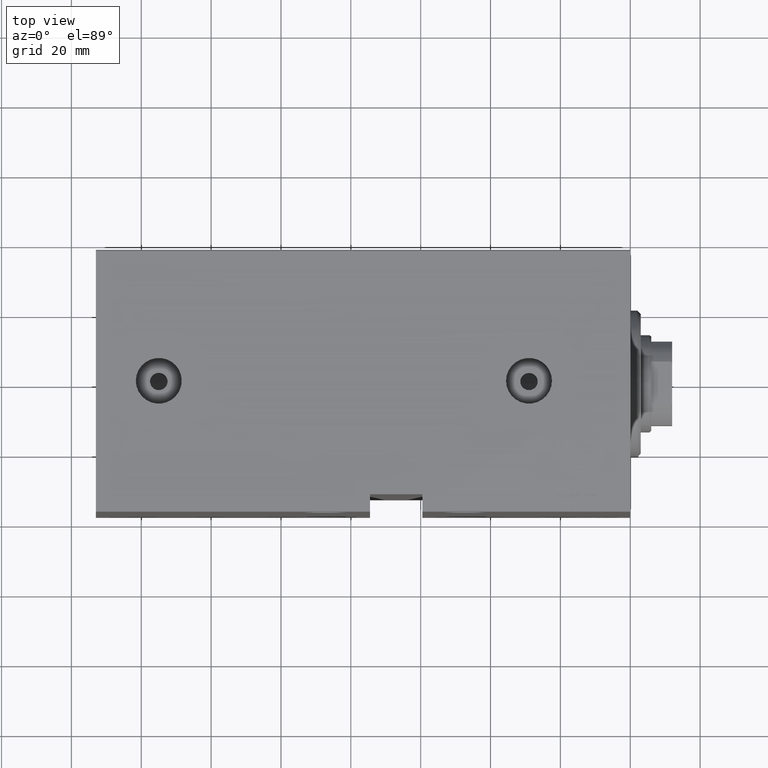
[diagram: clean part render]
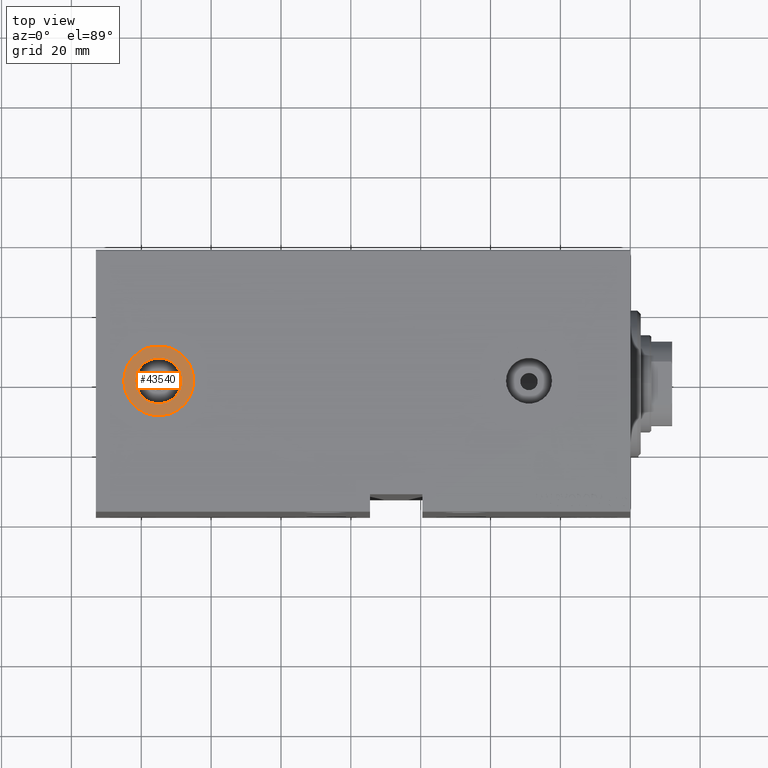
[diagram: same view with one face highlighted and labeled with its STEP entity id]
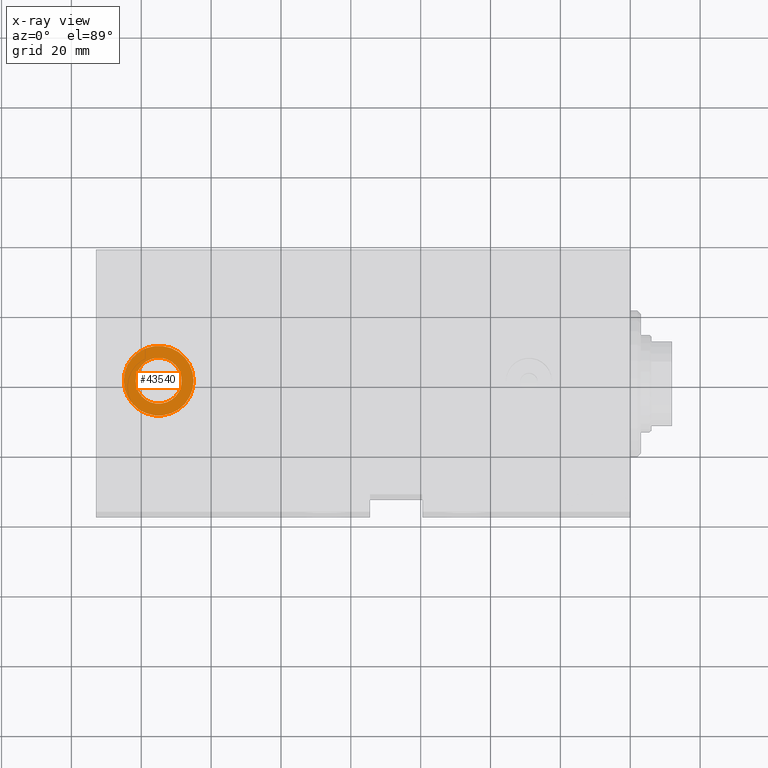
[diagram: x-ray of the same camera — body ghosted, the highlighted face saturated]
A machine part, top view. The second image highlights one B-rep face of the part: STEP entity #43540.
The next image is the same camera in x-ray: the body ghosted, the highlighted face saturated — about 0% of this face is hidden behind the body in this view.
In plain terms, the highlighted planar face has unit normal (0, -0, 1).
Its self-contained STEP definition (entity closure, byte-faithful):
#1889 = CIRCLE ( 'NONE', #6886, 6.580000000000030269 ) ;
#2122 = EDGE_CURVE ( 'NONE', #35467, #3122, #1889, .T. ) ;
#2334 = EDGE_CURVE ( 'NONE', #12282, #31002, #36978, .T. ) ;
#2439 = DIRECTION ( 'NONE',  ( 1.000000000000000000, 0.000000000000000000, 0.000000000000000000 ) ) ;
#2658 = CARTESIAN_POINT ( 'NONE',  ( 135.0000000000000000, 0.000000000000000000, 49.89999999999999858 ) ) ;
#2993 = CIRCLE ( 'NONE', #18767, 10.00000000000000888 ) ;
#3122 = VERTEX_POINT ( 'NONE', #40569 ) ;
#5151 = EDGE_CURVE ( 'NONE', #3122, #35467, #36375, .T. ) ;
#5377 = DIRECTION ( 'NONE',  ( 0.000000000000000000, 0.000000000000000000, 1.000000000000000000 ) ) ;
#6886 = AXIS2_PLACEMENT_3D ( 'NONE', #27329, #10540, #24191 ) ;
#7495 = EDGE_LOOP ( 'NONE', ( #34699, #16918 ) ) ;
#8311 = AXIS2_PLACEMENT_3D ( 'NONE', #19716, #36775, #9434 ) ;
#8667 = DIRECTION ( 'NONE',  ( 0.000000000000000000, 0.000000000000000000, 1.000000000000000000 ) ) ;
#9434 = DIRECTION ( 'NONE',  ( 1.000000000000000000, 0.000000000000000000, -0.000000000000000000 ) ) ;
#9640 = DIRECTION ( 'NONE',  ( 0.000000000000000000, 0.000000000000000000, 1.000000000000000000 ) ) ;
#10540 = DIRECTION ( 'NONE',  ( 0.000000000000000000, 0.000000000000000000, 1.000000000000000000 ) ) ;
#11602 = CARTESIAN_POINT ( 'NONE',  ( 135.0000000000000000, 0.000000000000000000, 49.89999999999999858 ) ) ;
#12282 = VERTEX_POINT ( 'NONE', #22000 ) ;
#13213 = DIRECTION ( 'NONE',  ( 1.000000000000000000, 0.000000000000000000, 0.000000000000000000 ) ) ;
#15940 = FACE_BOUND ( 'NONE', #7495, .T. ) ;
#16918 = ORIENTED_EDGE ( 'NONE', *, *, #2122, .F. ) ;
#17661 = AXIS2_PLACEMENT_3D ( 'NONE', #11602, #8667, #25254 ) ;
#18767 = AXIS2_PLACEMENT_3D ( 'NONE', #36102, #5377, #2439 ) ;
#19716 = CARTESIAN_POINT ( 'NONE',  ( 135.0000000000000000, 0.000000000000000000, 49.89999999999999858 ) ) ;
#22000 = CARTESIAN_POINT ( 'NONE',  ( 145.0000000000000284, 0.000000000000000000, 49.89999999999999858 ) ) ;
#24191 = DIRECTION ( 'NONE',  ( 1.000000000000000000, 0.000000000000000000, 0.000000000000000000 ) ) ;
#25254 = DIRECTION ( 'NONE',  ( 1.000000000000000000, 0.000000000000000000, 0.000000000000000000 ) ) ;
#25740 = ORIENTED_EDGE ( 'NONE', *, *, #29061, .T. ) ;
#27329 = CARTESIAN_POINT ( 'NONE',  ( 135.0000000000000000, 0.000000000000000000, 49.89999999999999858 ) ) ;
#29061 = EDGE_CURVE ( 'NONE', #31002, #12282, #2993, .T. ) ;
#31002 = VERTEX_POINT ( 'NONE', #41186 ) ;
#33416 = FACE_OUTER_BOUND ( 'NONE', #35731, .T. ) ;
#34699 = ORIENTED_EDGE ( 'NONE', *, *, #5151, .F. ) ;
#35114 = CARTESIAN_POINT ( 'NONE',  ( 128.4199999999999875, 8.058175938389589433E-16, 49.89999999999999858 ) ) ;
#35467 = VERTEX_POINT ( 'NONE', #35114 ) ;
#35731 = EDGE_LOOP ( 'NONE', ( #37439, #25740 ) ) ;
#36102 = CARTESIAN_POINT ( 'NONE',  ( 135.0000000000000000, 0.000000000000000000, 49.89999999999999858 ) ) ;
#36375 = CIRCLE ( 'NONE', #39951, 6.580000000000030269 ) ;
#36775 = DIRECTION ( 'NONE',  ( 0.000000000000000000, 0.000000000000000000, 1.000000000000000000 ) ) ;
#36978 = CIRCLE ( 'NONE', #17661, 10.00000000000000888 ) ;
#37439 = ORIENTED_EDGE ( 'NONE', *, *, #2334, .T. ) ;
#37825 = PLANE ( 'NONE',  #8311 ) ;
#39951 = AXIS2_PLACEMENT_3D ( 'NONE', #2658, #9640, #13213 ) ;
#40569 = CARTESIAN_POINT ( 'NONE',  ( 141.5800000000000409, 0.000000000000000000, 49.89999999999999858 ) ) ;
#41186 = CARTESIAN_POINT ( 'NONE',  ( 125.0000000000000000, 1.224646799147354440E-15, 49.89999999999999858 ) ) ;
#43540 = ADVANCED_FACE ( 'NONE', ( #15940, #33416 ), #37825, .T. ) ;